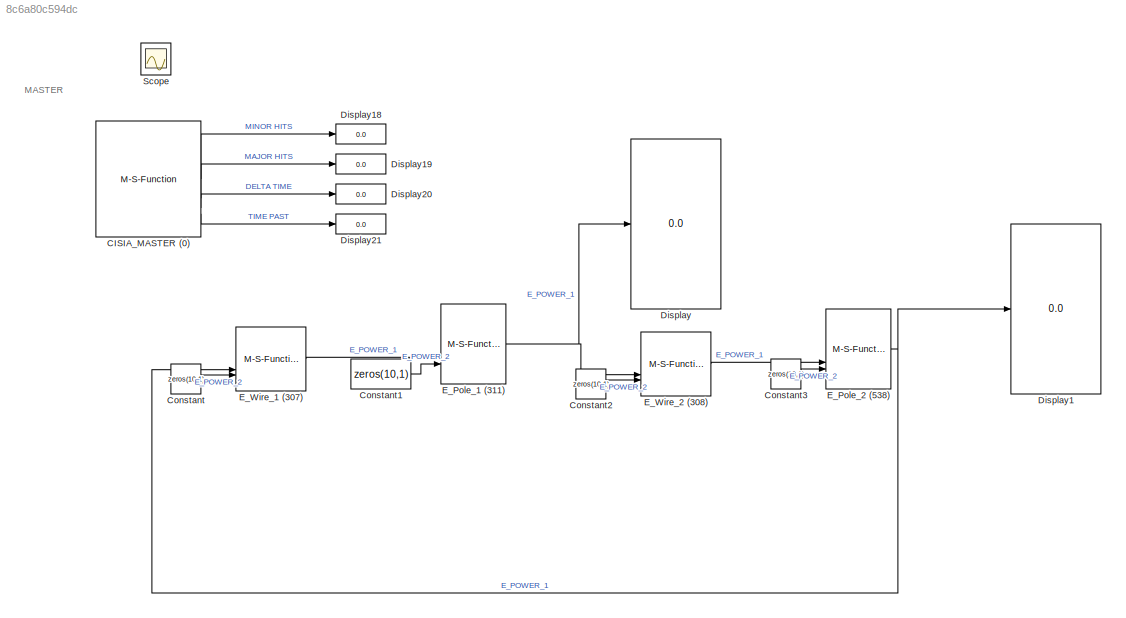
MODEL slx_8c6a80c594dc
KIND model
CONFIG AbsTol = auto
CONFIG EnableMultiTasking = off
CONFIG FixedStep = auto
CONFIG MaxStep = auto
CONFIG MinStep = auto
CONFIG RelTol = 1e-3
CONFIG SampleTimeConstraint = Unconstrained
CONFIG SolverName = VariableStepAuto
CONFIG StartTime = 0.0
CONFIG StopTime = 2
BLOCK [M-S-Function] CISIA_MASTER (0)
  FunctionName = cisia_msfun
  Parameters = Parameter1, Parameter2, Parameter3, resources, Parameter4, Parameter5, Parameter6, Parameter7, Parameter8, Parameter9,Parameter11,Parameter12
BLOCK [Constant] Constant
  Value = zeros(10,1)
BLOCK [Constant] Constant1
  Value = zeros(10,1)
BLOCK [Constant] Constant2
  Value = zeros(10,1)
BLOCK [Constant] Constant3
  Value = zeros(10,1)
BLOCK [Display] Display
  Decimation = 1
BLOCK [Display] Display1
  Decimation = 1
BLOCK [Display] Display18
  Decimation = 1
BLOCK [Display] Display19
  Decimation = 1
BLOCK [Display] Display20
  Decimation = 1
BLOCK [Display] Display21
  Decimation = 1
BLOCK [M-S-Function] E_Pole_1 (311)
  FunctionName = cisia_msfun
  Parameters = Parameter1, Parameter2, Parameter3, resources, Parameter10, codeupdate, step_received, step_computed, dynamic_computed, step_sended, id_entity, id_project, id_type, name_type, color
BLOCK [M-S-Function] E_Pole_2 (538)
  FunctionName = cisia_msfun
  Parameters = Parameter1, Parameter2, Parameter3, resources, Parameter10, codeupdate, step_received, step_computed, dynamic_computed, step_sended, id_entity, id_project, id_type, name_type, color
BLOCK [M-S-Function] E_Wire_1 (307)
  FunctionName = cisia_msfun
  Parameters = Parameter1, Parameter2, Parameter3, resources, Parameter10, codeupdate, step_received, step_computed, dynamic_computed, step_sended, id_entity, id_project, id_type, name_type, color
BLOCK [M-S-Function] E_Wire_2 (308)
  FunctionName = cisia_msfun
  Parameters = Parameter1, Parameter2, Parameter3, resources, Parameter10, codeupdate, step_received, step_computed, dynamic_computed, step_sended, id_entity, id_project, id_type, name_type, color
BLOCK [Scope] Scope
  Floating = off
  IOType = viewer
  NumInputPorts = 1
  ScopeSpecificationString = Simulink.scopes.TimeScopeBlockCfg('CurrentConfiguration', extmgr.ConfigurationSet(extmgr.Configuration('Core','General UI',true),extmgr.Configuration('Core','Source UI',true),extmgr.Configuration('Sources','WiredSimulink',true),extmgr.Configuration('Visuals','Time Domain',true,'SerializedDisplays',{struct('MinYLimReal','0.4375','MaxYLimReal','1.0625','YLabelReal','','MinYLimMag','0.4375','MaxYLimM...<+1505ch>
ANNOTATION (root): MASTER
LINE CISIA_MASTER (0):1 -> Display18:1
LINE CISIA_MASTER (0):2 -> Display19:1
LINE CISIA_MASTER (0):3 -> Display20:1
LINE CISIA_MASTER (0):4 -> Display21:1
LINE Constant1:1 -> E_Pole_1 (311):3
LINE Constant2:1 -> E_Wire_2 (308):3
LINE Constant3:1 -> E_Pole_2 (538):3
LINE Constant:1 -> E_Wire_1 (307):3
NET E_Pole_1 (311):1 -> Display:1, E_Wire_2 (308):2
NET E_Pole_2 (538):1 -> Display1:1, E_Wire_1 (307):2
LINE E_Wire_1 (307):1 -> E_Pole_1 (311):2
LINE E_Wire_2 (308):1 -> E_Pole_2 (538):2
note: NET lines group one-source signal fan-out (src -> all destinations, sorted); 1:1 wires keep LINE
